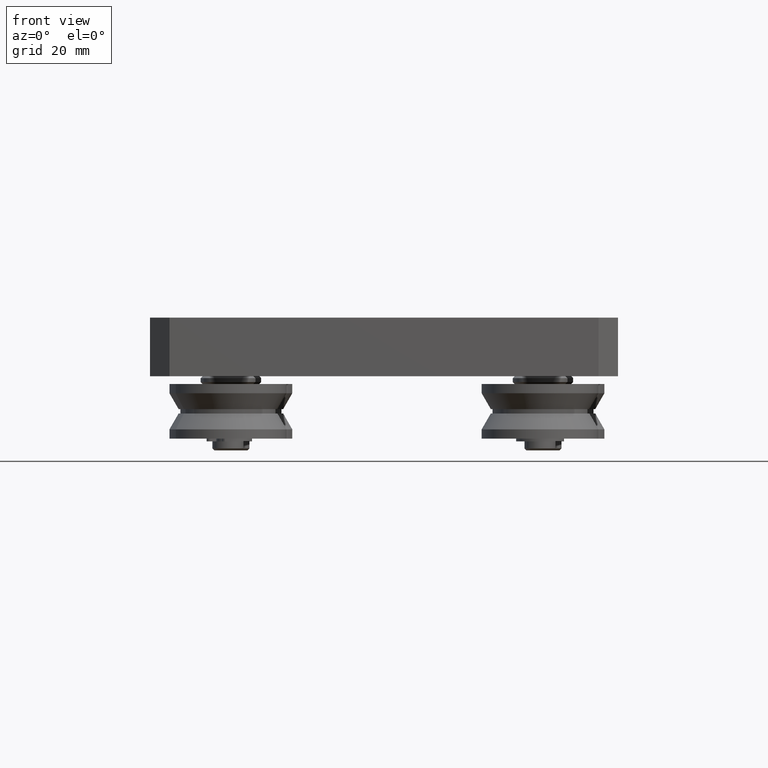
[diagram: clean part render]
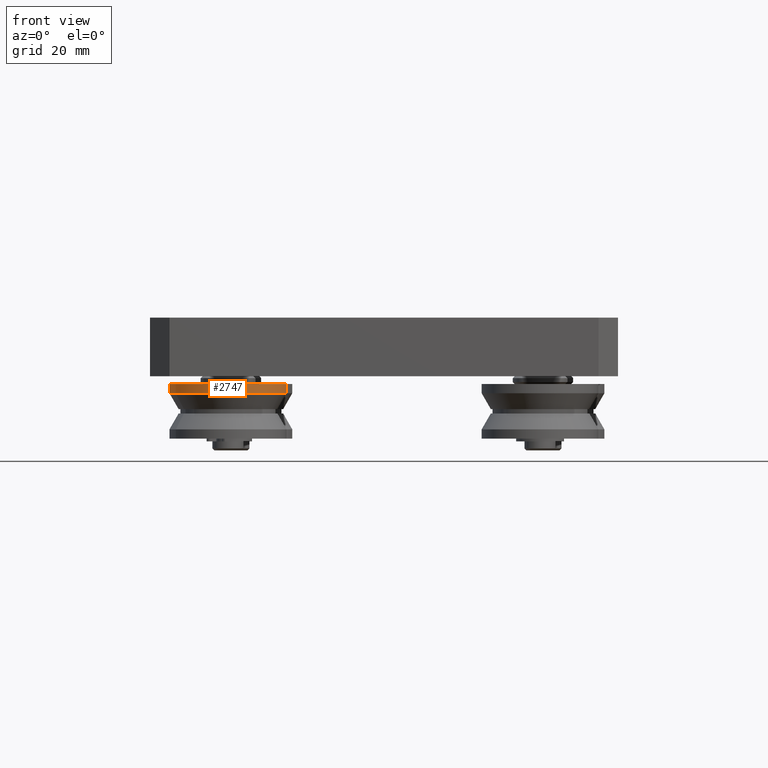
[diagram: same view with one face highlighted and labeled with its STEP entity id]
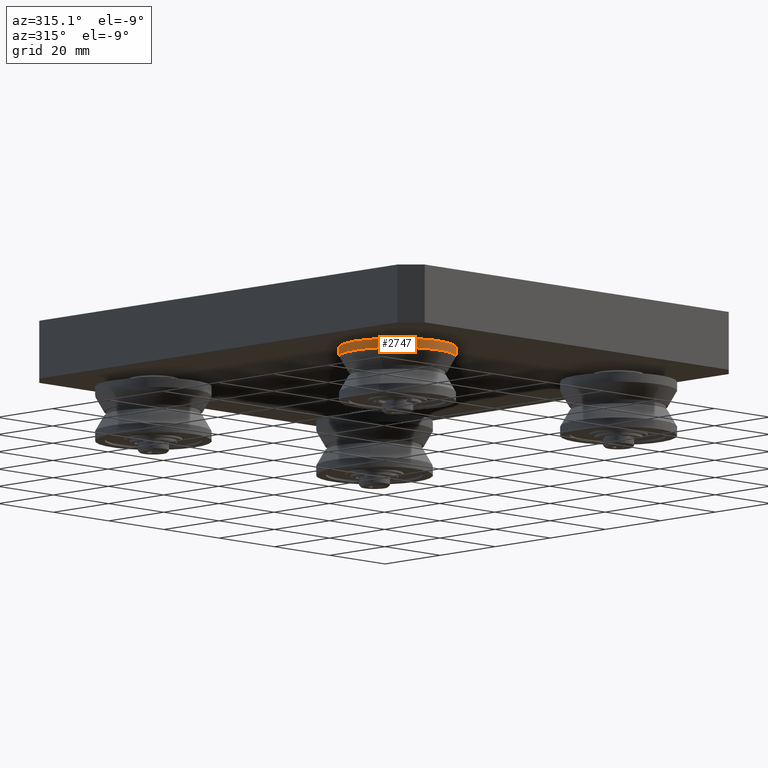
[diagram: same view with one face highlighted and labeled with its STEP entity id]
A machine part, front view. The second image highlights one B-rep face of the part: STEP entity #2747.
A second angle (auxiliary view) of the same face is appended — the face is thin or edge-on in the first view.
In plain terms, the highlighted cylindrical surface (bore or boss wall) has radius 15 mm, axis along (0, 0, 1).
Its self-contained STEP definition (entity closure, byte-faithful):
#161=CYLINDRICAL_SURFACE('',#3216,15.);
#319=CIRCLE('',#3215,15.);
#320=CIRCLE('',#3217,15.);
#490=FACE_OUTER_BOUND('',#696,.T.);
#696=EDGE_LOOP('',(#2304,#2305,#2306,#2307));
#911=LINE('',#4781,#1126);
#1126=VECTOR('',#3953,15.);
#1342=VERTEX_POINT('',#4775);
#1343=VERTEX_POINT('',#4779);
#1672=EDGE_CURVE('',#1342,#1342,#319,.T.);
#1674=EDGE_CURVE('',#1343,#1343,#320,.T.);
#1675=EDGE_CURVE('',#1343,#1342,#911,.T.);
#2304=ORIENTED_EDGE('',*,*,#1674,.F.);
#2305=ORIENTED_EDGE('',*,*,#1675,.T.);
#2306=ORIENTED_EDGE('',*,*,#1672,.T.);
#2307=ORIENTED_EDGE('',*,*,#1675,.F.);
#2747=ADVANCED_FACE('',(#490),#161,.T.);
#3215=AXIS2_PLACEMENT_3D('',#4776,#3946,#3947);
#3216=AXIS2_PLACEMENT_3D('',#4778,#3949,#3950);
#3217=AXIS2_PLACEMENT_3D('',#4780,#3951,#3952);
#3946=DIRECTION('center_axis',(1.,0.,0.));
#3947=DIRECTION('ref_axis',(0.,1.,0.));
#3949=DIRECTION('center_axis',(1.,0.,0.));
#3950=DIRECTION('ref_axis',(0.,1.,0.));
#3951=DIRECTION('center_axis',(1.,0.,0.));
#3952=DIRECTION('ref_axis',(0.,1.,0.));
#3953=DIRECTION('',(-1.,0.,0.));
#4775=CARTESIAN_POINT('',(4.63064249653649,-15.,-1.83697019872103E-15));
#4776=CARTESIAN_POINT('Origin',(4.63064249653649,0.,0.));
#4778=CARTESIAN_POINT('Origin',(5.81532124826825,0.,0.));
#4779=CARTESIAN_POINT('',(7.00000000000001,-15.,-1.83697019872103E-15));
#4780=CARTESIAN_POINT('Origin',(7.00000000000001,0.,0.));
#4781=CARTESIAN_POINT('',(5.81532124826825,-15.,-1.83697019872103E-15));